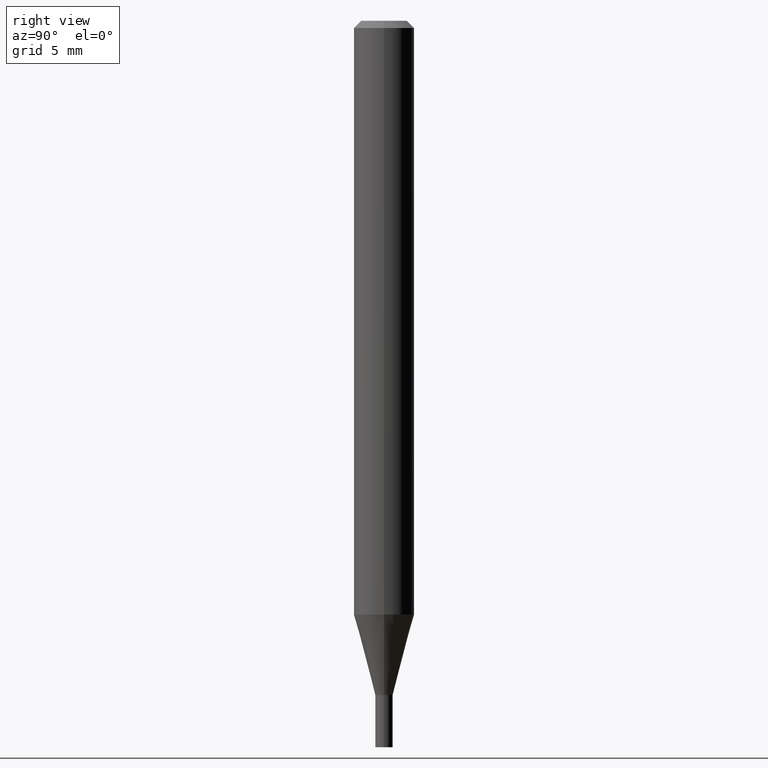
[diagram: clean part render]
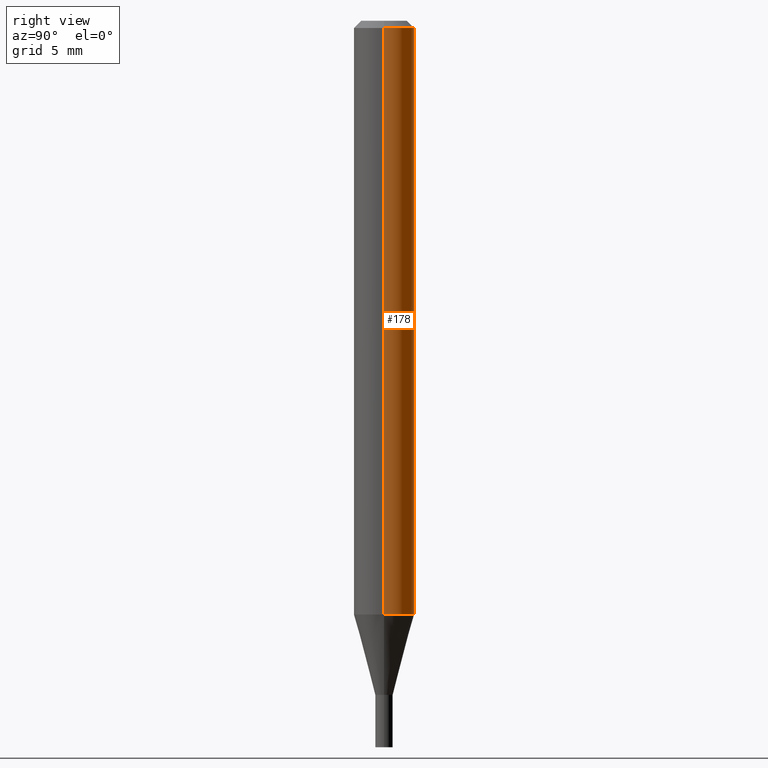
[diagram: same view with one face highlighted and labeled with its STEP entity id]
A machine part, right view. The second image highlights one B-rep face of the part: STEP entity #178.
In plain terms, the highlighted cylindrical surface (edge-blend (fillet) strip) has radius 1.5875 mm, axis along (-0, 0, 1).
Its self-contained STEP definition (entity closure, byte-faithful):
#3 = CARTESIAN_POINT ( 'NONE',  ( 0.06250000000000000000, -4.716725025139311787E-15, -1.225923739063184081 ) ) ;
#12 = DIRECTION ( 'NONE',  ( -2.445468806185136877E-29, 3.491481338843145188E-15, 1.000000000000000000 ) ) ;
#23 = VERTEX_POINT ( 'NONE', #3 ) ;
#32 = ORIENTED_EDGE ( 'NONE', *, *, #361, .F. ) ;
#47 = LINE ( 'NONE', #121, #156 ) ;
#73 = VECTOR ( 'NONE', #244, 39.37007874015748143 ) ;
#78 = CYLINDRICAL_SURFACE ( 'NONE', #393, 0.06250000000000000000 ) ;
#85 = CARTESIAN_POINT ( 'NONE',  ( -0.06250000000000000000, -3.836200647933857502E-15, -1.225923739063184081 ) ) ;
#97 = DIRECTION ( 'NONE',  ( 1.000000000000000000, -6.982962677686266711E-15, 0.000000000000000000 ) ) ;
#106 = CARTESIAN_POINT ( 'NONE',  ( -0.06250000000000000000, -1.722241829083221574E-15, -0.01499999999999999944 ) ) ;
#121 = CARTESIAN_POINT ( 'NONE',  ( 0.06250000000000000000, -4.364351673553916694E-16, 3.047610484872459871E-30 ) ) ;
#130 = EDGE_CURVE ( 'NONE', #201, #144, #457, .T. ) ;
#135 = DIRECTION ( 'NONE',  ( 1.000000000000000000, -6.982962677686270655E-15, 0.000000000000000000 ) ) ;
#144 = VERTEX_POINT ( 'NONE', #106 ) ;
#156 = VECTOR ( 'NONE', #12, 39.37007874015748143 ) ;
#176 = EDGE_LOOP ( 'NONE', ( #247, #280, #32, #308 ) ) ;
#178 = ADVANCED_FACE ( 'NONE', ( #398 ), #78, .T. ) ;
#197 = CIRCLE ( 'NONE', #218, 0.06250000000000000000 ) ;
#201 = VERTEX_POINT ( 'NONE', #85 ) ;
#216 = CARTESIAN_POINT ( 'NONE',  ( 0.000000000000000000, 0.000000000000000000, 0.000000000000000000 ) ) ;
#218 = AXIS2_PLACEMENT_3D ( 'NONE', #269, #456, #97 ) ;
#231 = CARTESIAN_POINT ( 'NONE',  ( 2.997958262640863701E-29, -4.280289857783920907E-15, -1.225923739063184081 ) ) ;
#244 = DIRECTION ( 'NONE',  ( -2.445468806185136877E-29, 3.491481338843145188E-15, 1.000000000000000000 ) ) ;
#247 = ORIENTED_EDGE ( 'NONE', *, *, #391, .T. ) ;
#269 = CARTESIAN_POINT ( 'NONE',  ( 3.668203209277705088E-31, -5.237222008264718399E-17, -0.01499999999999999944 ) ) ;
#280 = ORIENTED_EDGE ( 'NONE', *, *, #130, .T. ) ;
#281 = EDGE_CURVE ( 'NONE', #23, #385, #47, .T. ) ;
#308 = ORIENTED_EDGE ( 'NONE', *, *, #281, .F. ) ;
#326 = CIRCLE ( 'NONE', #463, 0.06250000000000000000 ) ;
#336 = DIRECTION ( 'NONE',  ( -2.445468806185136597E-29, 3.491481338843145583E-15, 1.000000000000000000 ) ) ;
#357 = DIRECTION ( 'NONE',  ( -2.445468806185136597E-29, 3.491481338843145583E-15, 1.000000000000000000 ) ) ;
#361 = EDGE_CURVE ( 'NONE', #385, #144, #197, .T. ) ;
#374 = CARTESIAN_POINT ( 'NONE',  ( 0.06250000000000000000, -4.888073874380388472E-16, -0.01499999999999999944 ) ) ;
#385 = VERTEX_POINT ( 'NONE', #374 ) ;
#391 = EDGE_CURVE ( 'NONE', #23, #201, #326, .T. ) ;
#393 = AXIS2_PLACEMENT_3D ( 'NONE', #216, #357, #442 ) ;
#398 = FACE_OUTER_BOUND ( 'NONE', #176, .T. ) ;
#419 = CARTESIAN_POINT ( 'NONE',  ( -0.06250000000000000000, 4.440892098500626162E-16, -3.074334431409316114E-30 ) ) ;
#442 = DIRECTION ( 'NONE',  ( 1.000000000000000000, -6.982962677686266711E-15, 4.876176775795935793E-29 ) ) ;
#456 = DIRECTION ( 'NONE',  ( -2.445468806185136597E-29, 3.491481338843145583E-15, 1.000000000000000000 ) ) ;
#457 = LINE ( 'NONE', #419, #73 ) ;
#463 = AXIS2_PLACEMENT_3D ( 'NONE', #231, #336, #135 ) ;